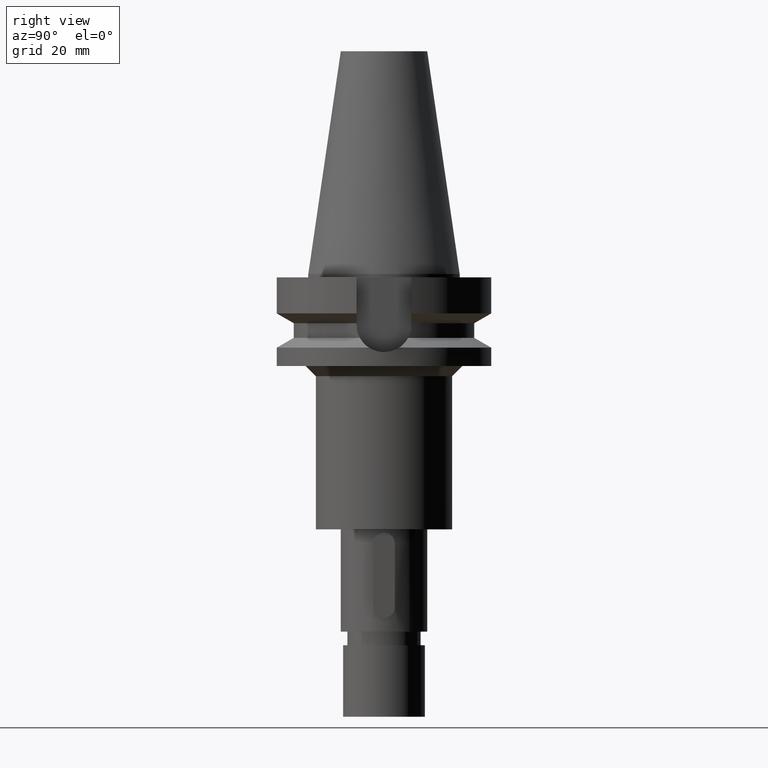
[diagram: clean part render]
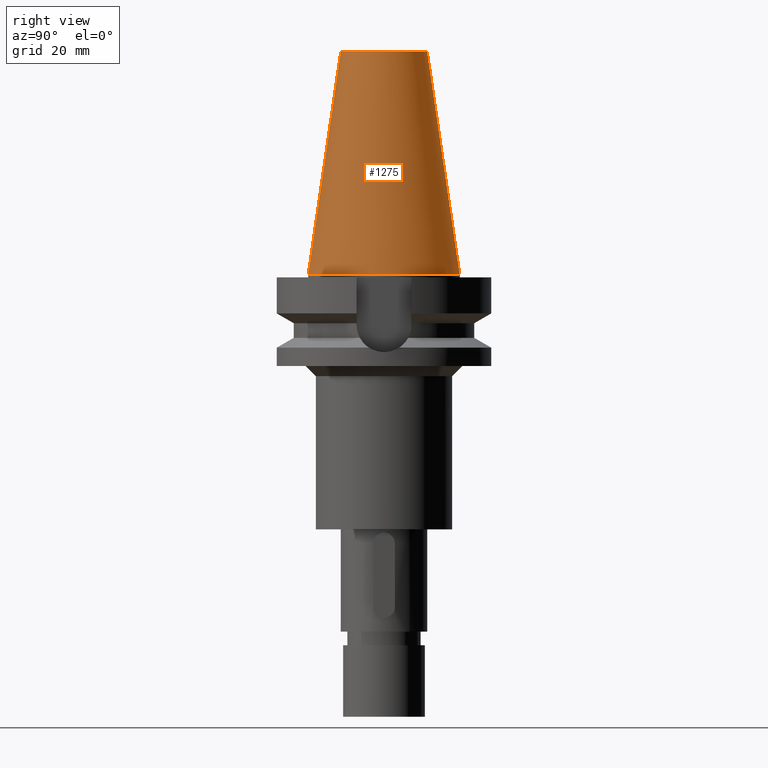
[diagram: same view with one face highlighted and labeled with its STEP entity id]
A machine part, right view. The second image highlights one B-rep face of the part: STEP entity #1275.
In plain terms, the highlighted conical surface has half-angle 8.297 deg.
Its self-contained STEP definition (entity closure, byte-faithful):
#26=CARTESIAN_POINT('',(0.E0,1.625106302469E-14,6.54E1));
#27=DIRECTION('',(0.E0,0.E0,-1.E0));
#28=DIRECTION('',(0.E0,1.E0,0.E0));
#29=AXIS2_PLACEMENT_3D('',#26,#27,#28);
#50=DIRECTION('',(0.E0,-1.443043893540E-1,-9.895333461856E-1));
#51=VECTOR('',#50,6.609175956738E1);
#52=CARTESIAN_POINT('',(0.E0,-1.268766899430E1,6.54E1));
#53=LINE('',#52,#51);
#65=DIRECTION('',(0.E0,1.443043893540E-1,-9.895333461856E-1));
#66=VECTOR('',#65,6.609175956738E1);
#67=CARTESIAN_POINT('',(0.E0,1.268766899430E1,6.54E1));
#68=LINE('',#67,#66);
#72=CARTESIAN_POINT('',(0.E0,1.625106302469E-14,2.842170943040E-14));
#73=DIRECTION('',(0.E0,0.E0,-1.E0));
#74=DIRECTION('',(0.E0,1.E0,0.E0));
#75=AXIS2_PLACEMENT_3D('',#72,#73,#74);
#1064=CARTESIAN_POINT('',(0.E0,-1.268766899430E1,6.54E1));
#1065=CARTESIAN_POINT('',(0.E0,1.268766899430E1,6.54E1));
#1066=VERTEX_POINT('',#1064);
#1067=VERTEX_POINT('',#1065);
#1084=CARTESIAN_POINT('',(0.E0,2.2225E1,7.105427357601E-14));
#1085=VERTEX_POINT('',#1084);
#1086=CARTESIAN_POINT('',(0.E0,-2.2225E1,7.105427357601E-14));
#1087=VERTEX_POINT('',#1086);
#1263=CARTESIAN_POINT('',(0.E0,1.625106302469E-14,3.27E1));
#1264=DIRECTION('',(0.E0,0.E0,-1.E0));
#1265=DIRECTION('',(0.E0,-1.E0,0.E0));
#1266=AXIS2_PLACEMENT_3D('',#1263,#1264,#1265);
#1267=CONICAL_SURFACE('',#1266,1.745633449715E1,8.297E0);
#1268=ORIENTED_EDGE('',*,*,#1253,.T.);
#1270=ORIENTED_EDGE('',*,*,#1269,.T.);
#1271=ORIENTED_EDGE('',*,*,#1256,.F.);
#1272=ORIENTED_EDGE('',*,*,#1237,.F.);
#1273=EDGE_LOOP('',(#1268,#1270,#1271,#1272));
#1274=FACE_OUTER_BOUND('',#1273,.F.);
#30=CIRCLE('',#29,1.268766899430E1);
#76=CIRCLE('',#75,2.2225E1);
#1237=EDGE_CURVE('',#1067,#1066,#30,.T.);
#1253=EDGE_CURVE('',#1067,#1085,#68,.T.);
#1256=EDGE_CURVE('',#1066,#1087,#53,.T.);
#1269=EDGE_CURVE('',#1085,#1087,#76,.T.);
#1275=ADVANCED_FACE('',(#1274),#1267,.T.);